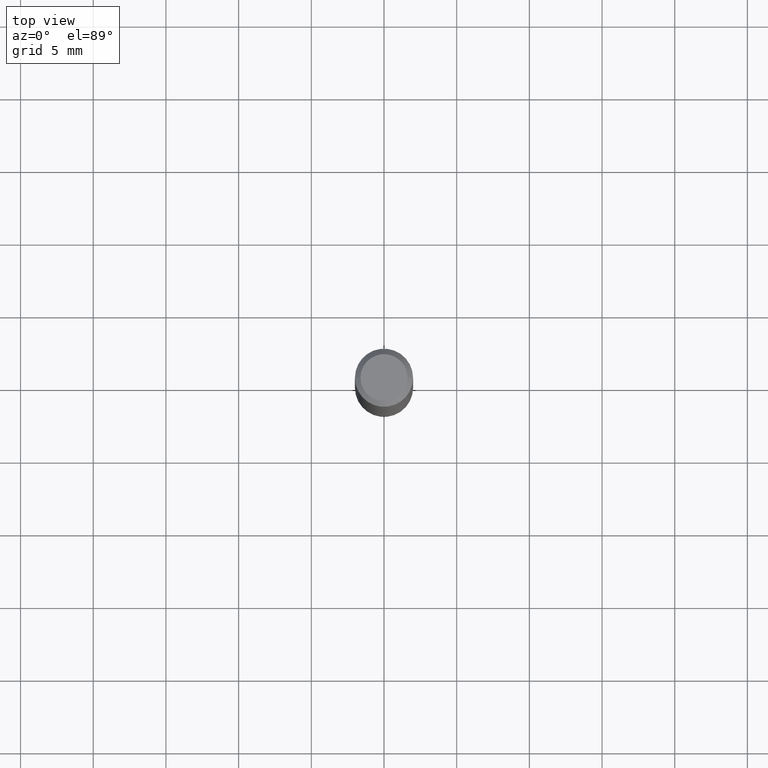
[diagram: clean part render]
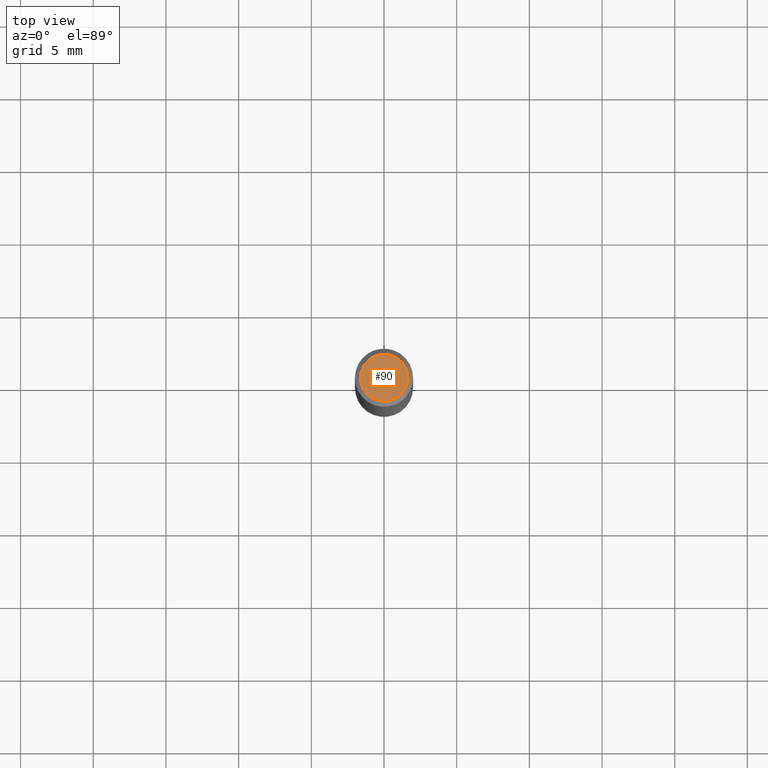
[diagram: same view with one face highlighted and labeled with its STEP entity id]
A machine part, top view. The second image highlights one B-rep face of the part: STEP entity #90.
In plain terms, the highlighted planar face has unit normal (0, -0, -1).
Its self-contained STEP definition (entity closure, byte-faithful):
#4 = CARTESIAN_POINT ( 'NONE',  ( 8.580606167969272650E-45, -1.225083151159157695E-30, -3.508777599725256540E-16 ) ) ;
#74 = CARTESIAN_POINT ( 'NONE',  ( 4.451638707024993845E-16, 0.06375000000000000111, -3.980208153375133574E-16 ) ) ;
#81 = DIRECTION ( 'NONE',  ( -2.445468806185136597E-29, 3.491481338843145583E-15, 1.000000000000000000 ) ) ;
#84 = AXIS2_PLACEMENT_3D ( 'NONE', #74, #209, #409 ) ;
#90 = ADVANCED_FACE ( 'NONE', ( #249 ), #331, .F. ) ;
#116 = CARTESIAN_POINT ( 'NONE',  ( 0.06375000000000000111, -5.149965923825457196E-16, -3.508777599725223014E-16 ) ) ;
#122 = EDGE_CURVE ( 'NONE', #458, #276, #411, .T. ) ;
#183 = DIRECTION ( 'NONE',  ( 1.000000000000000000, -6.982962677686265922E-15, 4.852736867747365646E-29 ) ) ;
#209 = DIRECTION ( 'NONE',  ( 2.438088387897960049E-29, -3.491481338843145188E-15, -1.000000000000000000 ) ) ;
#210 = AXIS2_PLACEMENT_3D ( 'NONE', #4, #81, #183 ) ;
#249 = FACE_OUTER_BOUND ( 'NONE', #307, .T. ) ;
#276 = VERTEX_POINT ( 'NONE', #116 ) ;
#280 = DIRECTION ( 'NONE',  ( -2.445468806185136597E-29, 3.491481338843145583E-15, 1.000000000000000000 ) ) ;
#307 = EDGE_LOOP ( 'NONE', ( #316, #430 ) ) ;
#309 = CIRCLE ( 'NONE', #364, 0.06375000000000000111 ) ;
#313 = CARTESIAN_POINT ( 'NONE',  ( -0.06375000000000000111, 4.713499807438222338E-16, -3.508777599725288588E-16 ) ) ;
#316 = ORIENTED_EDGE ( 'NONE', *, *, #122, .T. ) ;
#331 = PLANE ( 'NONE',  #84 ) ;
#342 = EDGE_CURVE ( 'NONE', #276, #458, #309, .T. ) ;
#349 = CARTESIAN_POINT ( 'NONE',  ( 8.580606167969272650E-45, -1.225083151159157695E-30, -3.508777599725256540E-16 ) ) ;
#364 = AXIS2_PLACEMENT_3D ( 'NONE', #349, #280, #428 ) ;
#409 = DIRECTION ( 'NONE',  ( -1.000000000000000000, 6.982962677686265922E-15, -4.876176775795935793E-29 ) ) ;
#411 = CIRCLE ( 'NONE', #210, 0.06375000000000000111 ) ;
#428 = DIRECTION ( 'NONE',  ( 1.000000000000000000, -6.982962677686265922E-15, 4.852736867747365646E-29 ) ) ;
#430 = ORIENTED_EDGE ( 'NONE', *, *, #342, .T. ) ;
#458 = VERTEX_POINT ( 'NONE', #313 ) ;